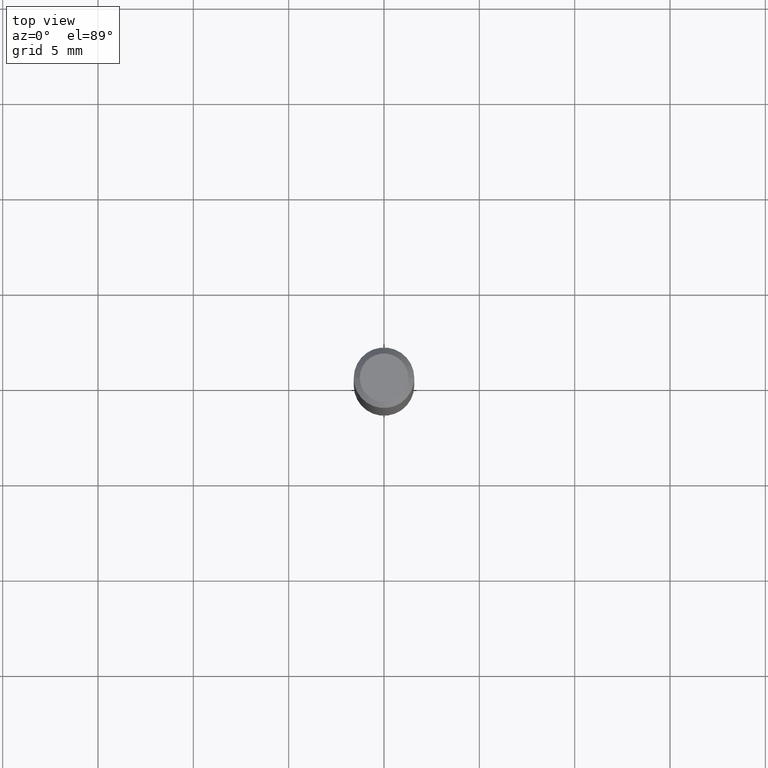
[diagram: clean part render]
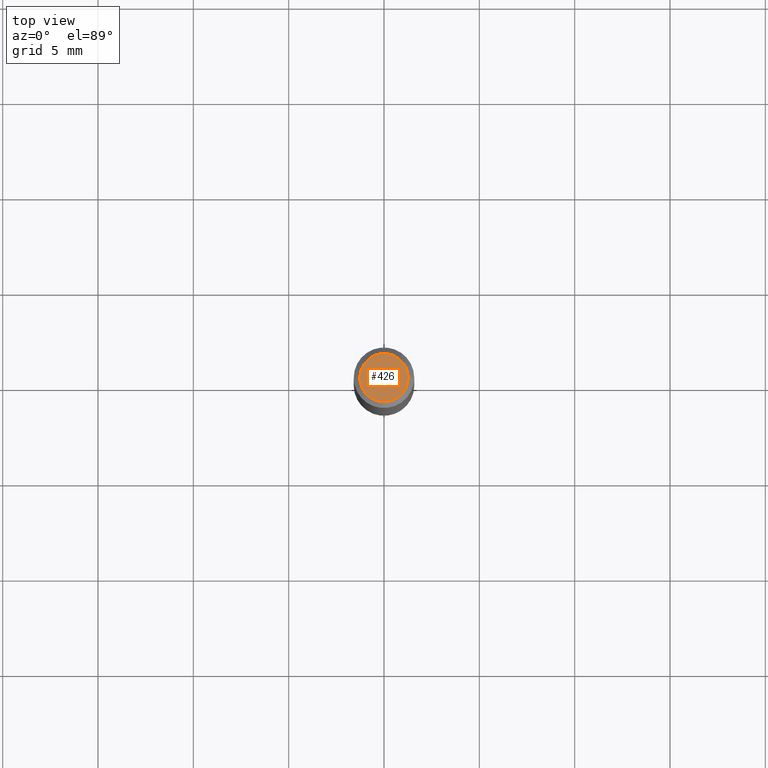
[diagram: same view with one face highlighted and labeled with its STEP entity id]
A machine part, top view. The second image highlights one B-rep face of the part: STEP entity #426.
In plain terms, the highlighted planar face has unit normal (0, -0, -1).
Its self-contained STEP definition (entity closure, byte-faithful):
#23 = AXIS2_PLACEMENT_3D ( 'NONE', #316, #190, #312 ) ;
#135 = EDGE_CURVE ( 'NONE', #269, #154, #474, .T. ) ;
#143 = EDGE_LOOP ( 'NONE', ( #278, #237 ) ) ;
#154 = VERTEX_POINT ( 'NONE', #252 ) ;
#190 = DIRECTION ( 'NONE',  ( -2.445468806185136597E-29, 3.491481338843145583E-15, 1.000000000000000000 ) ) ;
#203 = AXIS2_PLACEMENT_3D ( 'NONE', #490, #307, #273 ) ;
#226 = CARTESIAN_POINT ( 'NONE',  ( -0.04999999999999999584, 3.709698922520826725E-16, -1.592040838894077649E-18 ) ) ;
#237 = ORIENTED_EDGE ( 'NONE', *, *, #457, .T. ) ;
#252 = CARTESIAN_POINT ( 'NONE',  ( 0.04999999999999999584, -4.077247707424184212E-16, -1.592040838888913461E-18 ) ) ;
#254 = DIRECTION ( 'NONE',  ( 1.000000000000000000, -6.982962677686265922E-15, 4.875957971899673662E-29 ) ) ;
#262 = CIRCLE ( 'NONE', #23, 0.04999999999999999584 ) ;
#269 = VERTEX_POINT ( 'NONE', #226 ) ;
#273 = DIRECTION ( 'NONE',  ( -1.000000000000000000, 6.982962677686265922E-15, -4.876176775795935793E-29 ) ) ;
#278 = ORIENTED_EDGE ( 'NONE', *, *, #135, .T. ) ;
#307 = DIRECTION ( 'NONE',  ( 2.438088387897960049E-29, -3.491481338843145188E-15, -1.000000000000000000 ) ) ;
#312 = DIRECTION ( 'NONE',  ( 1.000000000000000000, -6.982962677686265922E-15, 4.875957971899673662E-29 ) ) ;
#314 = PLANE ( 'NONE',  #203 ) ;
#316 = CARTESIAN_POINT ( 'NONE',  ( 3.893286209682126177E-47, -5.558580879666067980E-33, -1.592040838891559689E-18 ) ) ;
#382 = FACE_OUTER_BOUND ( 'NONE', #143, .T. ) ;
#399 = CARTESIAN_POINT ( 'NONE',  ( 3.893286209682126177E-47, -5.558580879666067980E-33, -1.592040838891559689E-18 ) ) ;
#425 = DIRECTION ( 'NONE',  ( -2.445468806185136597E-29, 3.491481338843145583E-15, 1.000000000000000000 ) ) ;
#426 = ADVANCED_FACE ( 'NONE', ( #382 ), #314, .F. ) ;
#429 = AXIS2_PLACEMENT_3D ( 'NONE', #399, #425, #254 ) ;
#457 = EDGE_CURVE ( 'NONE', #154, #269, #262, .T. ) ;
#474 = CIRCLE ( 'NONE', #429, 0.04999999999999999584 ) ;
#490 = CARTESIAN_POINT ( 'NONE',  ( 1.946643104841063088E-47, -2.779290439833033990E-33, -7.960204194457798443E-19 ) ) ;